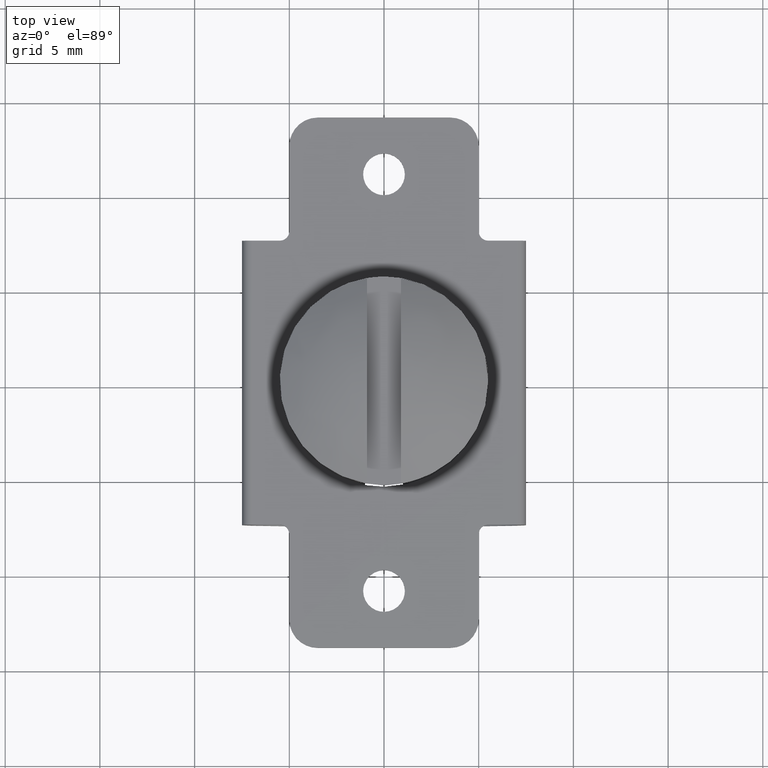
[diagram: clean part render]
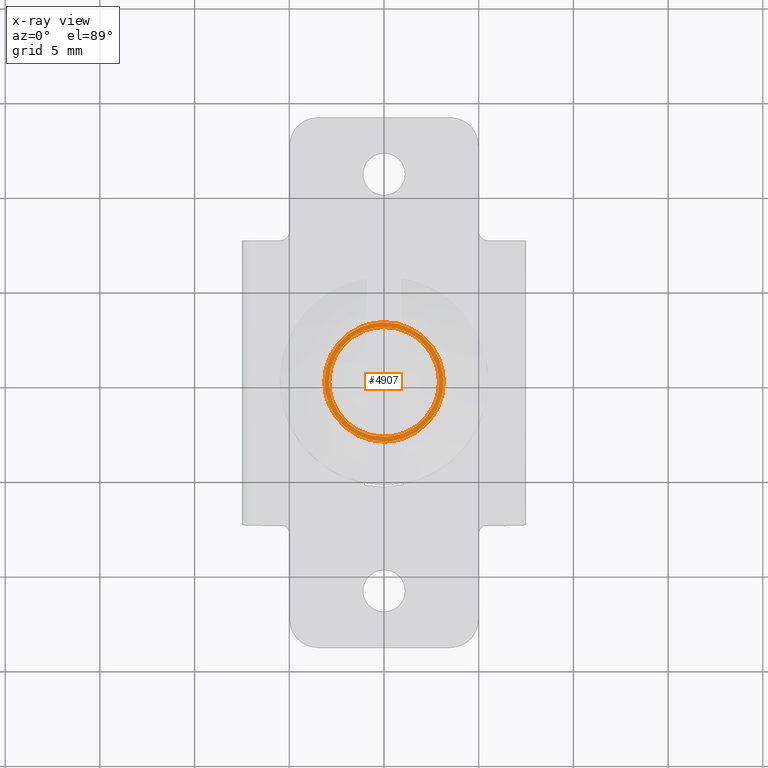
[diagram: x-ray — body ghosted, one internal face saturated and labeled with its STEP entity id]
A machine part, top view, then the same camera in x-ray: the body is ghosted and one INTERNAL B-rep face — a face not visible from any outside direction — is saturated and labeled: STEP entity #4907.
In plain terms, the highlighted face is a freeform B-spline surface patch.
Its self-contained STEP definition (entity closure, byte-faithful):
#3314=CARTESIAN_POINT('',(2.597255789083382,-1.290062602860571,17.0));
#3315=VERTEX_POINT('',#3314);
#3316=CARTESIAN_POINT('',(-0.000000732892006,-2.900000000000003,17.0));
#3317=VERTEX_POINT('',#3316);
#3318=CARTESIAN_POINT('',(2.597255789083382,-1.290062602860571,17.0));
#3319=CARTESIAN_POINT('',(2.526426589646692,-1.432687396133005,16.999999999999940));
#3320=CARTESIAN_POINT('',(2.374226225154691,-1.684617885755282,17.000000000000082));
#3321=CARTESIAN_POINT('',(2.051400344851271,-2.071780898914190,16.999999999999979));
#3322=CARTESIAN_POINT('',(1.696148968701986,-2.369753229817039,17.0));
#3323=CARTESIAN_POINT('',(1.232176072985877,-2.640905106098207,16.999999999999929));
#3324=CARTESIAN_POINT('',(0.695617776203053,-2.842769406940720,16.999999999999989));
#3325=CARTESIAN_POINT('',(0.243060582912561,-2.900058828527726,17.0));
#3326=CARTESIAN_POINT('',(-0.000000732892006,-2.900000000000003,17.0));
#3327=B_SPLINE_CURVE_WITH_KNOTS('',3,(#3318,#3319,#3320,#3321,#3322,#3323,#3324,#3325,#3326),.UNSPECIFIED.,.F.,.U.,(4,1,1,1,1,1,4),(0.000000014177423,0.477730461924634,0.880032480722583,1.508634809164838,1.860633754402185,2.489234000115370,3.218403052962806),.UNSPECIFIED.);
#3328=EDGE_CURVE('',#3315,#3317,#3327,.T.);
#3330=CARTESIAN_POINT('',(-2.900000000000095,0.0,17.0));
#3331=VERTEX_POINT('',#3330);
#3332=CARTESIAN_POINT('',(-0.000000732892006,-2.900000000000003,17.0));
#3333=CARTESIAN_POINT('',(-0.201668336139733,-2.900029721477629,17.000000000000011));
#3334=CARTESIAN_POINT('',(-0.569404502527955,-2.861484701445070,16.999999999999989));
#3335=CARTESIAN_POINT('',(-1.002370372559770,-2.730138169030584,17.000000000000039));
#3336=CARTESIAN_POINT('',(-1.392088188509452,-2.554521833880847,16.999999999999911));
#3337=CARTESIAN_POINT('',(-1.735613583348361,-2.339932820768753,17.000000000000231));
#3338=CARTESIAN_POINT('',(-2.127701135436178,-1.993237471443193,16.999999999999758));
#3339=CARTESIAN_POINT('',(-2.445724924672952,-1.590867749834794,17.000000000000099));
#3340=CARTESIAN_POINT('',(-2.708926544906464,-1.083548464947945,17.000000000000139));
#3341=CARTESIAN_POINT('',(-2.864974854235736,-0.557550018441447,16.999999999999542));
#3342=CARTESIAN_POINT('',(-2.900011990954112,-0.177938712039254,17.000000000000220));
#3343=CARTESIAN_POINT('',(-2.900000000000095,0.0,17.0));
#3344=B_SPLINE_CURVE_WITH_KNOTS('',3,(#3332,#3333,#3334,#3335,#3336,#3337,#3338,#3339,#3340,#3341,#3342,#3343),.UNSPECIFIED.,.F.,.U.,(4,1,1,1,1,1,1,1,1,4),(0.000000015340965,0.605002203214041,1.103245411490746,1.352367941493454,1.886195928617582,2.313253263029370,2.918259831476268,3.416503141155733,4.021516226695575,4.555337517265534),.UNSPECIFIED.);
#3345=EDGE_CURVE('',#3317,#3331,#3344,.T.);
#3347=CARTESIAN_POINT('',(0.000000732891939,2.900000000000003,17.0));
#3348=VERTEX_POINT('',#3347);
#3349=CARTESIAN_POINT('',(-2.900000000000095,0.0,17.0));
#3350=CARTESIAN_POINT('',(-2.900034751935353,0.201669080948969,17.000000000000060));
#3351=CARTESIAN_POINT('',(-2.866444322943174,0.521949339927832,16.999999999999950));
#3352=CARTESIAN_POINT('',(-2.733314091616875,1.003048249722700,17.000000000000082));
#3353=CARTESIAN_POINT('',(-2.547332060914957,1.415781389968006,16.999999999999901));
#3354=CARTESIAN_POINT('',(-2.307116875520382,1.770523959080129,17.000000000000082));
#3355=CARTESIAN_POINT('',(-2.047485425658367,2.064140759769439,16.999999999999918));
#3356=CARTESIAN_POINT('',(-1.735614904972719,2.339933109858243,17.0));
#3357=CARTESIAN_POINT('',(-1.341568464639373,2.586084383429459,17.000000000000028));
#3358=CARTESIAN_POINT('',(-0.956926231227838,2.745389003941284,16.999999999999979));
#3359=CARTESIAN_POINT('',(-0.521945250045264,2.865776986849860,17.000000000000028));
#3360=CARTESIAN_POINT('',(-0.213532619543096,2.900038332057259,16.999999999999929));
#3361=CARTESIAN_POINT('',(0.000000732891939,2.900000000000003,17.0));
#3362=B_SPLINE_CURVE_WITH_KNOTS('',3,(#3349,#3350,#3351,#3352,#3353,#3354,#3355,#3356,#3357,#3358,#3359,#3360,#3361),.UNSPECIFIED.,.F.,.U.,(4,1,1,1,1,1,1,1,1,1,4),(0.000000015087283,0.605002312784261,0.960891548920322,1.494723799950106,1.957377265221769,2.242084558760443,2.669141293842876,3.202970500852425,3.630037020912679,3.914747160831102,4.555338343410774),.UNSPECIFIED.);
#3363=EDGE_CURVE('',#3331,#3348,#3362,.T.);
#3365=CARTESIAN_POINT('',(1.996228384719083,2.103585818852957,17.0));
#3366=VERTEX_POINT('',#3365);
#3367=CARTESIAN_POINT('',(0.000000732891939,2.900000000000003,17.0));
#3368=CARTESIAN_POINT('',(0.275235239595155,2.900126627436746,17.000000000000089));
#3369=CARTESIAN_POINT('',(0.676517259038876,2.842406357546366,16.999999999999869));
#3370=CARTESIAN_POINT('',(1.227082079448073,2.641458473191463,17.000000000000099));
#3371=CARTESIAN_POINT('',(1.629186134927175,2.416490777596908,16.999999999999929));
#3372=CARTESIAN_POINT('',(1.888096684215954,2.206205381341708,17.000000000000021));
#3373=CARTESIAN_POINT('',(1.996228384719083,2.103585818852957,17.0));
#3374=B_SPLINE_CURVE_WITH_KNOTS('',3,(#3367,#3368,#3369,#3370,#3371,#3372,#3373),.UNSPECIFIED.,.F.,.U.,(4,1,1,1,4),(4.694845E-009,0.825654606177229,1.204074564069411,1.754516710843763,2.201745082460719),.UNSPECIFIED.);
#3375=EDGE_CURVE('',#3348,#3366,#3374,.T.);
#3467=CARTESIAN_POINT('',(2.900000000000095,0.0,17.0));
#3468=VERTEX_POINT('',#3467);
#3469=CARTESIAN_POINT('',(2.900000000000095,0.0,17.0));
#3470=CARTESIAN_POINT('',(2.900000193906593,-0.118372390390149,17.000000000000011));
#3471=CARTESIAN_POINT('',(2.882085777930715,-0.410825747874049,17.0));
#3472=CARTESIAN_POINT('',(2.787716489789125,-0.848206259880996,16.999999999999989));
#3473=CARTESIAN_POINT('',(2.665409025831061,-1.152869516155754,17.000000000000021));
#3474=CARTESIAN_POINT('',(2.597255789083382,-1.290062602860571,17.0));
#3475=B_SPLINE_CURVE_WITH_KNOTS('',3,(#3469,#3470,#3471,#3472,#3473,#3474),.UNSPECIFIED.,.F.,.U.,(4,1,1,4),(2.057011E-009,0.355119391418664,0.877352474720442,1.336919883640021),.UNSPECIFIED.);
#3476=EDGE_CURVE('',#3468,#3315,#3475,.T.);
#3500=CARTESIAN_POINT('',(1.996228384719083,2.103585818852957,17.0));
#3501=CARTESIAN_POINT('',(2.111829294214929,1.993899263652436,16.999999999999989));
#3502=CARTESIAN_POINT('',(2.316684779004182,1.764575318738415,17.000000000000011));
#3503=CARTESIAN_POINT('',(2.535826063121985,1.423161565441256,17.0));
#3504=CARTESIAN_POINT('',(2.715029612855390,1.046279606797025,17.000000000000011));
#3505=CARTESIAN_POINT('',(2.858858994630886,0.588381731002450,16.999999999999989));
#3506=CARTESIAN_POINT('',(2.900036630937465,0.208393131935229,17.000000000000082));
#3507=CARTESIAN_POINT('',(2.900000000000095,0.0,17.0));
#3508=B_SPLINE_CURVE_WITH_KNOTS('',3,(#3500,#3501,#3502,#3503,#3504,#3505,#3506,#3507),.UNSPECIFIED.,.F.,.U.,(4,1,1,1,1,4),(3.572224E-009,0.478072972861951,0.919375660834306,1.213569692179928,1.728419312859880,2.353592353908255),.UNSPECIFIED.);
#3509=EDGE_CURVE('',#3366,#3468,#3508,.T.);
#3540=CARTESIAN_POINT('',(-2.034087463305500,-2.405200349303258,16.999999999999030));
#3541=VERTEX_POINT('',#3540);
#3542=CARTESIAN_POINT('',(-3.150000000000000,0.0,17.0));
#3543=VERTEX_POINT('',#3542);
#3544=CARTESIAN_POINT('',(-2.034087463305500,-2.405200349303258,16.999999999999030));
#3545=CARTESIAN_POINT('',(-2.224592239356782,-2.244165715992620,16.999999999999119));
#3546=CARTESIAN_POINT('',(-2.478923543444297,-1.971034522938820,16.999999999999151));
#3547=CARTESIAN_POINT('',(-2.796561291498677,-1.479320765958909,16.999999999999460));
#3548=CARTESIAN_POINT('',(-2.998318061858627,-1.020231817489873,16.999999999999421));
#3549=CARTESIAN_POINT('',(-3.124351572071259,-0.491752234040760,16.999999999999989));
#3550=CARTESIAN_POINT('',(-3.150009134165619,-0.163918523511294,16.999999999999829));
#3551=CARTESIAN_POINT('',(-3.150000000000000,0.0,17.0));
#3552=B_SPLINE_CURVE_WITH_KNOTS('',3,(#3544,#3545,#3546,#3547,#3548,#3549,#3550,#3551),.UNSPECIFIED.,.F.,.U.,(4,1,1,1,1,4),(7.095077E-009,0.748324863646380,1.111799791440976,1.753215205962476,2.244975140828177,2.736730416986419),.UNSPECIFIED.);
#3553=EDGE_CURVE('',#3541,#3543,#3552,.T.);
#3622=CARTESIAN_POINT('',(2.284929220726414,-2.168316840523766,17.000000000000831));
#3623=VERTEX_POINT('',#3622);
#3629=CARTESIAN_POINT('',(3.150000000000000,0.0,17.0));
#3630=VERTEX_POINT('',#3629);
#3631=CARTESIAN_POINT('',(3.150000000000000,0.0,17.0));
#3632=CARTESIAN_POINT('',(3.150031597454111,-0.211753952312010,17.000000000000071));
#3633=CARTESIAN_POINT('',(3.118475884847163,-0.523139461747613,17.000000000000231));
#3634=CARTESIAN_POINT('',(2.998570723933031,-0.994456217098355,17.000000000000380));
#3635=CARTESIAN_POINT('',(2.841105026084529,-1.389167521237059,17.000000000000458));
#3636=CARTESIAN_POINT('',(2.593287583153241,-1.808415049349241,17.000000000000782));
#3637=CARTESIAN_POINT('',(2.396399555639279,-2.050865978123857,17.000000000000728));
#3638=CARTESIAN_POINT('',(2.284929220726414,-2.168316840523766,17.000000000000831));
#3639=B_SPLINE_CURVE_WITH_KNOTS('',3,(#3631,#3632,#3633,#3634,#3635,#3636,#3637,#3638),.UNSPECIFIED.,.F.,.U.,(4,1,1,1,1,4),(3.911961E-009,0.635256254311094,0.934203056681674,1.457348324845879,1.905768370053137,2.391551377611618),.UNSPECIFIED.);
#3640=EDGE_CURVE('',#3630,#3623,#3639,.T.);
#3642=CARTESIAN_POINT('',(0.000000340384955,3.149999999999982,17.0));
#3643=VERTEX_POINT('',#3642);
#3644=CARTESIAN_POINT('',(0.000000340384955,3.149999999999982,17.0));
#3645=CARTESIAN_POINT('',(0.231942551427519,3.150050452161934,17.000000000000050));
#3646=CARTESIAN_POINT('',(0.566939940266043,3.112818278159248,16.999999999999918));
#3647=CARTESIAN_POINT('',(1.051856566874348,2.978624786532047,17.000000000000082));
#3648=CARTESIAN_POINT('',(1.409216644179714,2.828029073874451,17.0));
#3649=CARTESIAN_POINT('',(1.809163587487256,2.591630089836153,16.999999999999950));
#3650=CARTESIAN_POINT('',(2.162572291961002,2.308795780264428,17.000000000000082));
#3651=CARTESIAN_POINT('',(2.457570403216530,1.983289028667009,16.999999999999979));
#3652=CARTESIAN_POINT('',(2.702715848465269,1.635219947162125,17.000000000000021));
#3653=CARTESIAN_POINT('',(2.895464342843015,1.269224012981285,16.999999999999989));
#3654=CARTESIAN_POINT('',(3.092187904760684,0.708652432057690,17.000000000000011));
#3655=CARTESIAN_POINT('',(3.150107402711725,0.283492158341749,16.999999999999961));
#3656=CARTESIAN_POINT('',(3.150000000000000,0.0,17.0));
#3657=B_SPLINE_CURVE_WITH_KNOTS('',3,(#3644,#3645,#3646,#3647,#3648,#3649,#3650,#3651,#3652,#3653,#3654,#3655,#3656),.UNSPECIFIED.,.F.,.U.,(4,1,1,1,1,1,1,1,1,1,4),(8.451512E-009,0.695812896884851,1.005069383227137,1.507608329041758,1.855520033878763,2.396709462657675,2.860576071779908,3.169837314480002,3.672372820298527,4.097598449481341,4.948039284208914),.UNSPECIFIED.);
#3658=EDGE_CURVE('',#3643,#3630,#3657,.T.);
#3660=CARTESIAN_POINT('',(-3.150000000000000,0.0,17.0));
#3661=CARTESIAN_POINT('',(-3.150022399784717,0.206167282242973,17.000000000000011));
#3662=CARTESIAN_POINT('',(-3.106850237690896,0.644264105168379,17.0));
#3663=CARTESIAN_POINT('',(-2.903295785502693,1.286946505172011,16.999999999999979));
#3664=CARTESIAN_POINT('',(-2.576867780850503,1.846966438517171,17.0));
#3665=CARTESIAN_POINT('',(-2.199895222556973,2.273248956581732,16.999999999999989));
#3666=CARTESIAN_POINT('',(-1.810380018801670,2.592913884535185,16.999999999999979));
#3667=CARTESIAN_POINT('',(-1.409771977658775,2.829702298755626,17.000000000000131));
#3668=CARTESIAN_POINT('',(-0.955215699241860,3.014727320564270,16.999999999999972));
#3669=CARTESIAN_POINT('',(-0.489643823786816,3.125293943606505,16.999999999999989));
#3670=CARTESIAN_POINT('',(-0.154621952484336,3.150005787857071,16.999999999999989));
#3671=CARTESIAN_POINT('',(0.000000340384955,3.149999999999982,17.0));
#3672=B_SPLINE_CURVE_WITH_KNOTS('',3,(#3660,#3661,#3662,#3663,#3664,#3665,#3666,#3667,#3668,#3669,#3670,#3671),.UNSPECIFIED.,.F.,.U.,(4,1,1,1,1,1,1,1,1,4),(8.331531E-009,0.618501520507159,1.314323947893124,2.010149406270658,2.551329332424626,3.015205675239939,3.517744975381999,3.942971649592505,4.484168949437960,4.948039667904503),.UNSPECIFIED.);
#3673=EDGE_CURVE('',#3543,#3643,#3672,.T.);
#3692=CARTESIAN_POINT('',(-0.000000340384968,-3.149999999999981,17.0));
#3693=VERTEX_POINT('',#3692);
#3694=CARTESIAN_POINT('',(-0.000000340384968,-3.149999999999981,17.0));
#3695=CARTESIAN_POINT('',(-0.287942565671133,-3.150113220609217,16.999999999999869));
#3696=CARTESIAN_POINT('',(-0.714012974044568,-3.091146304565021,16.999999999999670));
#3697=CARTESIAN_POINT('',(-1.225423899606166,-2.910190658035060,16.999999999999400));
#3698=CARTESIAN_POINT('',(-1.628373942375840,-2.710215996707906,16.999999999999311));
#3699=CARTESIAN_POINT('',(-1.884602471135501,-2.531647797475828,16.999999999999019));
#3700=CARTESIAN_POINT('',(-2.034087463305500,-2.405200349303258,16.999999999999030));
#3701=B_SPLINE_CURVE_WITH_KNOTS('',3,(#3694,#3695,#3696,#3697,#3698,#3699,#3700),.UNSPECIFIED.,.F.,.U.,(4,1,1,1,4),(4.320444E-009,0.863787766965626,1.278401584506884,1.623918715491318,2.211294075882025),.UNSPECIFIED.);
#3702=EDGE_CURVE('',#3693,#3541,#3701,.T.);
#3704=CARTESIAN_POINT('',(2.284929220726414,-2.168316840523766,17.000000000000831));
#3705=CARTESIAN_POINT('',(2.156627281466544,-2.303548011287290,17.000000000000810));
#3706=CARTESIAN_POINT('',(1.926031700099843,-2.506899719288063,17.000000000000671));
#3707=CARTESIAN_POINT('',(1.534815716216576,-2.761528555141461,17.000000000000590));
#3708=CARTESIAN_POINT('',(1.100671877461488,-2.967977292355248,17.000000000000380));
#3709=CARTESIAN_POINT('',(0.572540504022549,-3.115631859905295,17.000000000000188));
#3710=CARTESIAN_POINT('',(0.186409193412225,-3.150016311707743,17.000000000000099));
#3711=CARTESIAN_POINT('',(-0.000000340384968,-3.149999999999981,17.0));
#3712=B_SPLINE_CURVE_WITH_KNOTS('',3,(#3704,#3705,#3706,#3707,#3708,#3709,#3710,#3711),.UNSPECIFIED.,.F.,.U.,(4,1,1,1,1,4),(2.436336E-009,0.559230987148979,0.918740439524959,1.398077980255900,1.997257490816419,2.556488475532075),.UNSPECIFIED.);
#3713=EDGE_CURVE('',#3623,#3693,#3712,.T.);
#4886=CARTESIAN_POINT('',(-3.464685106069162,-3.464685106069142,17.0));
#4887=CARTESIAN_POINT('',(3.464685162395551,-3.464685106069142,17.0));
#4888=CARTESIAN_POINT('',(-3.464685106069162,3.464685162395532,17.0));
#4889=CARTESIAN_POINT('',(3.464685162395551,3.464685162395532,17.0));
#4890=B_SPLINE_SURFACE_WITH_KNOTS('',1,1,((#4886,#4888),(#4887,#4889)),.UNSPECIFIED.,.F.,.F.,.U.,(2,2),(2,2),(0.0,6.929370268464713),(0.0,6.929370268464673),.UNSPECIFIED.);
#4891=ORIENTED_EDGE('',*,*,#3673,.T.);
#4892=ORIENTED_EDGE('',*,*,#3658,.T.);
#4893=ORIENTED_EDGE('',*,*,#3640,.T.);
#4894=ORIENTED_EDGE('',*,*,#3713,.T.);
#4895=ORIENTED_EDGE('',*,*,#3702,.T.);
#4896=ORIENTED_EDGE('',*,*,#3553,.T.);
#4897=EDGE_LOOP('',(#4891,#4892,#4893,#4894,#4895,#4896));
#4898=FACE_OUTER_BOUND('',#4897,.T.);
#4899=ORIENTED_EDGE('',*,*,#3363,.F.);
#4900=ORIENTED_EDGE('',*,*,#3345,.F.);
#4901=ORIENTED_EDGE('',*,*,#3328,.F.);
#4902=ORIENTED_EDGE('',*,*,#3476,.F.);
#4903=ORIENTED_EDGE('',*,*,#3509,.F.);
#4904=ORIENTED_EDGE('',*,*,#3375,.F.);
#4905=EDGE_LOOP('',(#4899,#4900,#4901,#4902,#4903,#4904));
#4906=FACE_BOUND('',#4905,.T.);
#4907=ADVANCED_FACE('',(#4898,#4906),#4890,.F.);